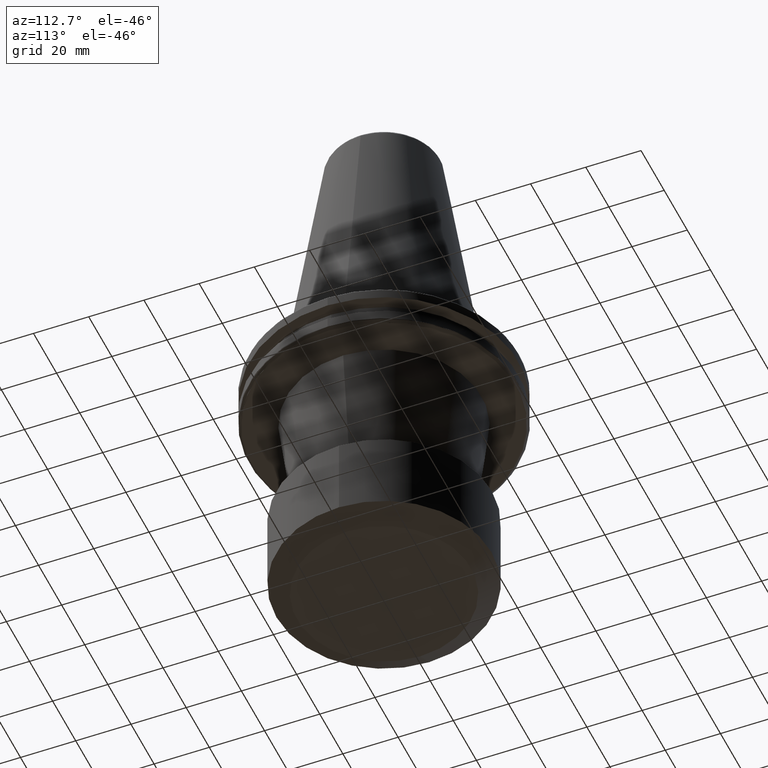
[diagram: clean part render]
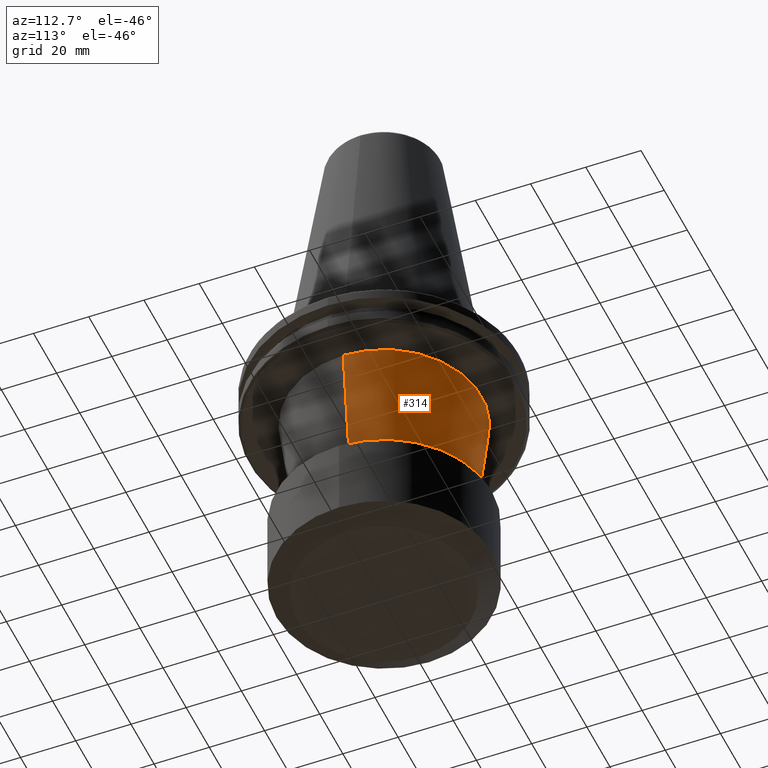
[diagram: same view with one face highlighted and labeled with its STEP entity id]
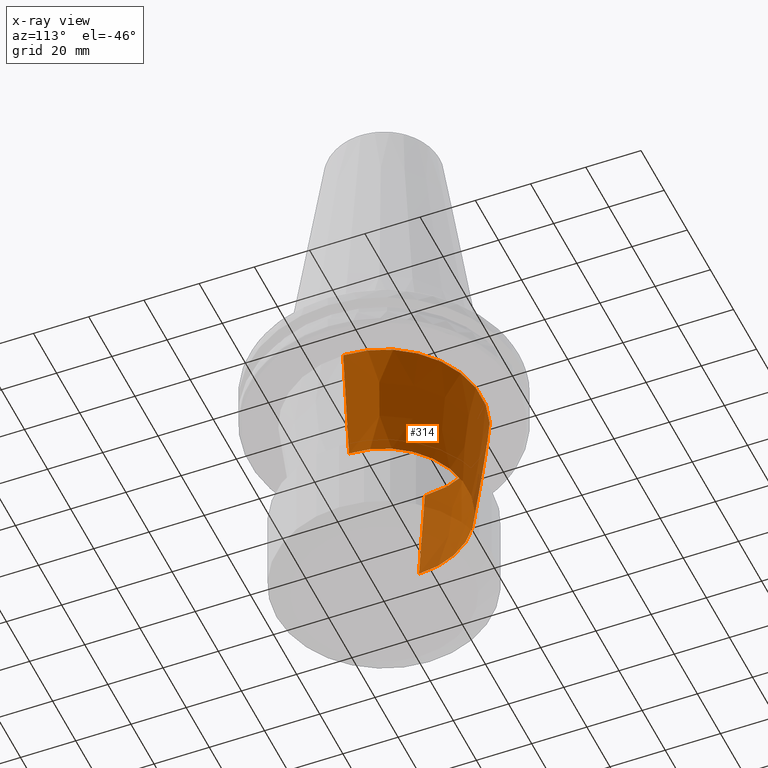
[diagram: x-ray of the same camera — body ghosted, the highlighted face saturated]
A machine part, auxiliary view. The second image highlights one B-rep face of the part: STEP entity #314.
The next image is the same camera in x-ray: the body ghosted, the highlighted face saturated — about 21% of this face is hidden behind the body in this view.
In plain terms, the highlighted conical surface has half-angle 6.799 deg.
Its self-contained STEP definition (entity closure, byte-faithful):
#120 = DIRECTION ( 'NONE',  ( 1.000000000000000000, 0.0000000000000000000, 9.169617567275033200E-016 ) ) ;
#211 = AXIS2_PLACEMENT_3D ( 'NONE', #1122, #2777, #1379 ) ;
#297 = AXIS2_PLACEMENT_3D ( 'NONE', #2978, #1632, #120 ) ;
#314 = ADVANCED_FACE ( 'NONE', ( #1829 ), #2003, .T. ) ;
#317 = CARTESIAN_POINT ( 'NONE',  ( 30.26906565294972800, 0.0000000000000000000, -61.50541263646810800 ) ) ;
#408 = VERTEX_POINT ( 'NONE', #1055 ) ;
#554 = VECTOR ( 'NONE', #2614, 1000.000000000000000 ) ;
#571 = VERTEX_POINT ( 'NONE', #317 ) ;
#661 = LINE ( 'NONE', #1713, #554 ) ;
#962 = EDGE_CURVE ( 'NONE', #571, #2875, #2811, .T. ) ;
#1055 = CARTESIAN_POINT ( 'NONE',  ( -30.26906565294973500, 4.016478127247312200E-015, -61.50541263646813700 ) ) ;
#1061 = ORIENTED_EDGE ( 'NONE', *, *, #962, .F. ) ;
#1122 = CARTESIAN_POINT ( 'NONE',  ( 0.0000000000000000000, 0.0000000000000000000, -19.10000000000000500 ) ) ;
#1149 = CARTESIAN_POINT ( 'NONE',  ( 0.0000000000000000000, 0.0000000000000000000, -19.09999999999997700 ) ) ;
#1162 = DIRECTION ( 'NONE',  ( 0.0000000000000000000, -0.0000000000000000000, 1.000000000000000000 ) ) ;
#1173 = DIRECTION ( 'NONE',  ( 1.000000000000000000, 0.0000000000000000000, 0.0000000000000000000 ) ) ;
#1176 = CARTESIAN_POINT ( 'NONE',  ( 35.32500000000000300, 0.0000000000000000000, -19.10000000000000500 ) ) ;
#1237 = CARTESIAN_POINT ( 'NONE',  ( 35.32500000000000300, 0.0000000000000000000, -19.09999999999997700 ) ) ;
#1288 = CIRCLE ( 'NONE', #211, 35.32500000000000300 ) ;
#1294 = AXIS2_PLACEMENT_3D ( 'NONE', #1149, #1162, #1173 ) ;
#1379 = DIRECTION ( 'NONE',  ( 1.000000000000000000, 0.0000000000000000000, 0.0000000000000000000 ) ) ;
#1494 = DIRECTION ( 'NONE',  ( 0.1183900008510162900, 0.0000000000000000000, 0.9929671735251354200 ) ) ;
#1547 = EDGE_CURVE ( 'NONE', #571, #408, #2831, .T. ) ;
#1632 = DIRECTION ( 'NONE',  ( 0.0000000000000000000, 0.0000000000000000000, 1.000000000000000000 ) ) ;
#1665 = ORIENTED_EDGE ( 'NONE', *, *, #1547, .T. ) ;
#1713 = CARTESIAN_POINT ( 'NONE',  ( -35.32500000000000300, 4.326064817988025100E-015, -19.09999999999997700 ) ) ;
#1743 = VERTEX_POINT ( 'NONE', #2956 ) ;
#1829 = FACE_OUTER_BOUND ( 'NONE', #2399, .T. ) ;
#2003 = CONICAL_SURFACE ( 'NONE', #1294, 35.32500000000000300, 0.1186683227419107300 ) ;
#2051 = ORIENTED_EDGE ( 'NONE', *, *, #3062, .F. ) ;
#2161 = ORIENTED_EDGE ( 'NONE', *, *, #2499, .T. ) ;
#2399 = EDGE_LOOP ( 'NONE', ( #1665, #2161, #2051, #1061 ) ) ;
#2499 = EDGE_CURVE ( 'NONE', #408, #1743, #661, .T. ) ;
#2614 = DIRECTION ( 'NONE',  ( -0.1183900008510162900, 1.449859355932495000E-017, 0.9929671735251354200 ) ) ;
#2714 = VECTOR ( 'NONE', #1494, 1000.000000000000000 ) ;
#2777 = DIRECTION ( 'NONE',  ( 0.0000000000000000000, -0.0000000000000000000, 1.000000000000000000 ) ) ;
#2811 = LINE ( 'NONE', #1237, #2714 ) ;
#2831 = CIRCLE ( 'NONE', #297, 30.26906565294972800 ) ;
#2875 = VERTEX_POINT ( 'NONE', #1176 ) ;
#2956 = CARTESIAN_POINT ( 'NONE',  ( -35.32500000000000300, 4.326064817988024300E-015, -19.10000000000000500 ) ) ;
#2978 = CARTESIAN_POINT ( 'NONE',  ( 0.0000000000000000000, 0.0000000000000000000, -61.50541263646813700 ) ) ;
#3062 = EDGE_CURVE ( 'NONE', #2875, #1743, #1288, .T. ) ;